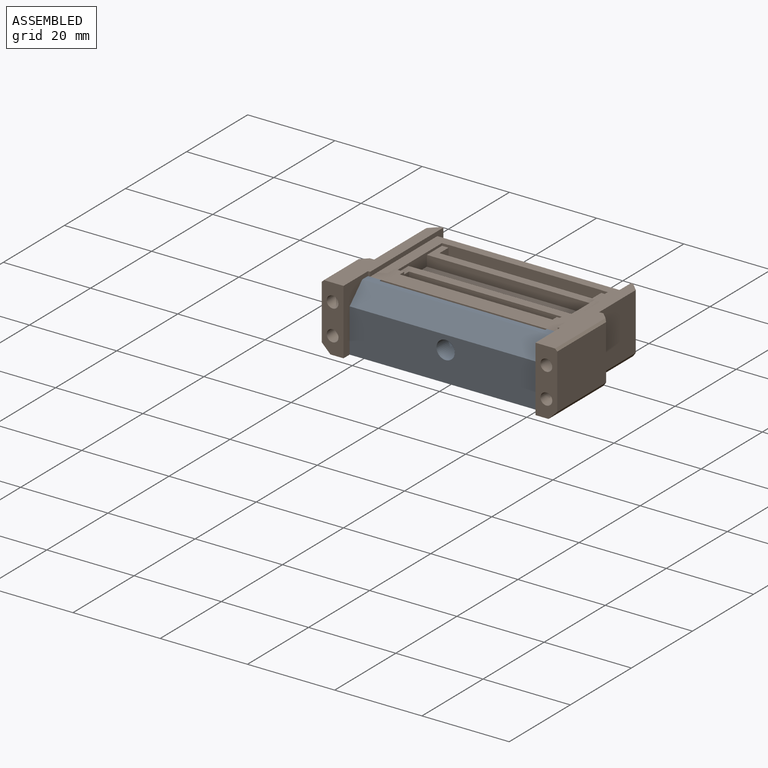
[diagram: assembled view]
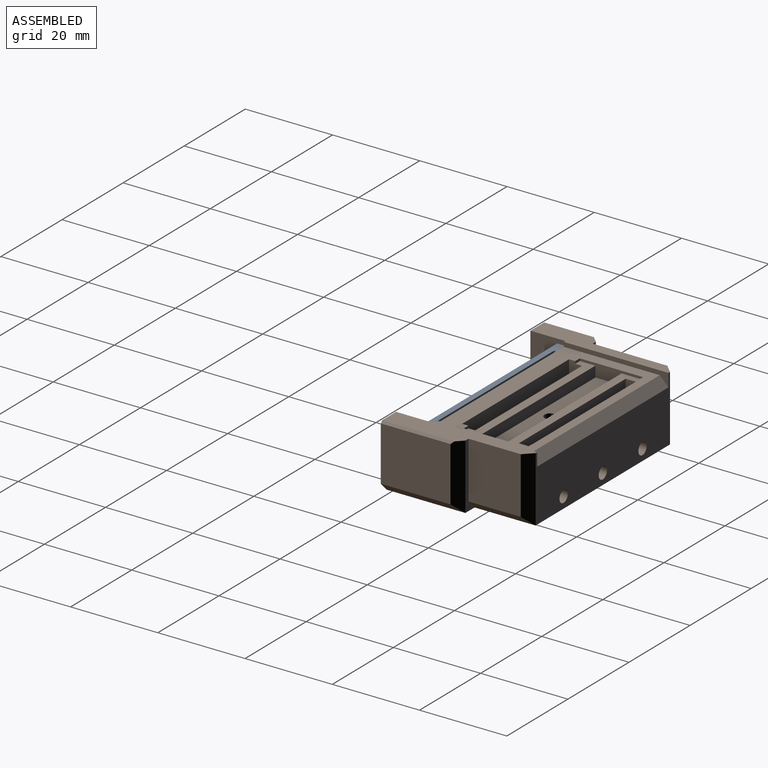
[diagram: assembled view, second angle]
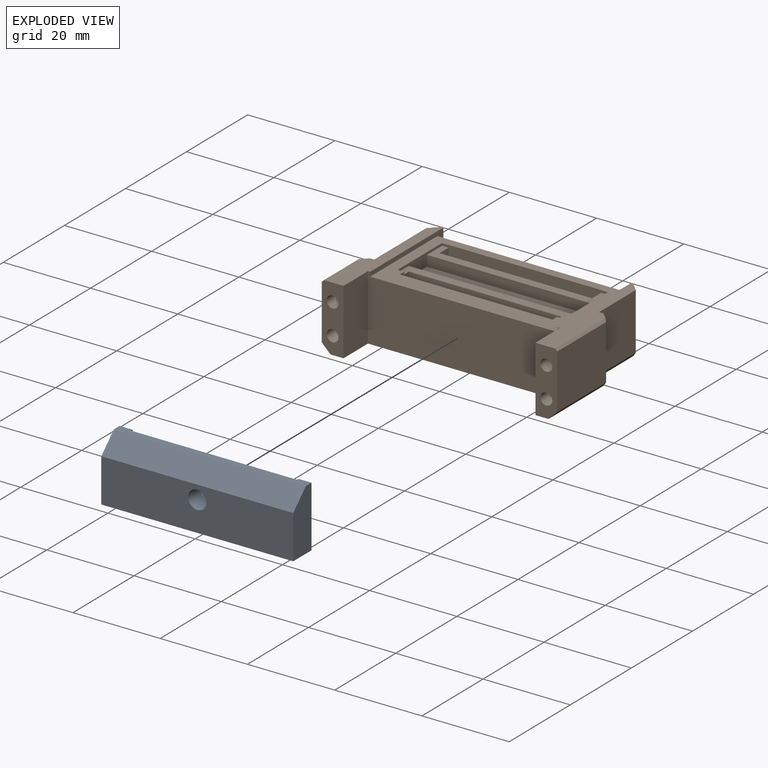
[diagram: exploded view]
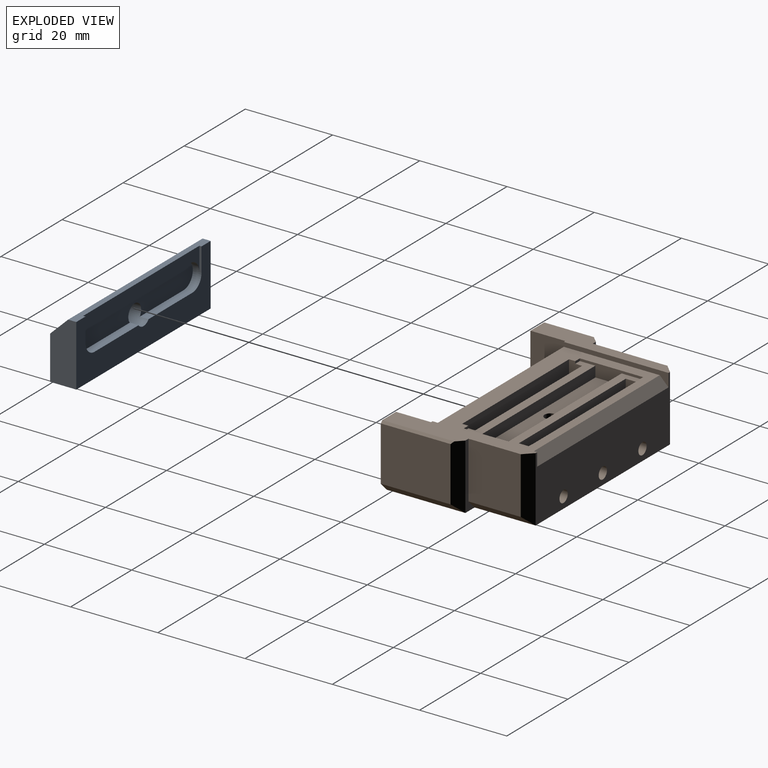
[diagram: exploded view, second angle]
ASSEMBLY  parts=2 mates=3
PART A: 17 faces, bbox 44x6x14 mm
  f0: plane 44x6mm, normal (0,0,1), area 264mm2, adj f1,f4,f5,f6
  f1: plane 44x14mm, normal (0,-1,0), area 296.9mm2, adj f0,f2,f5,f6,f7,f8,f9,f11
  f2: plane 44x1.86mm, normal (0,0,-1), area 62.7mm2, adj f1,f3,f5,f6,f8,f9,f10
  f3: plane 44x4.14mm, normal (0,0.69,-0.72), area 253.4mm2, adj f2,f4,f5,f6
  f4: plane 44x10mm, normal (0,1,0), area 426.1mm2, adj f0,f3,f5,f6,f7
  f5: plane 14x6mm, normal (1,0,0), area 75.7mm2, adj f0,f1,f2,f3,f4
  f6: plane 14x6mm, normal (-1,0,0), area 75.7mm2, adj f0,f1,f2,f3,f4
  f7: cylinder r=2.1mm len=6mm, axis (0,1,0), area 60.4mm2, adj f1,f4,f11,f15,f16
  f8: plane 5.45x0.5mm, normal (1,0,0), area 2.7mm2, adj f1,f2,f10,f12
  f9: plane 5.45x0.5mm, normal (-1,0,0), area 2.7mm2, adj f1,f2,f10,f14
  f10: plane 38x5.45mm, normal (0,-1,0), area 97mm2, adj f2,f8,f9,f12,f13,f14
  f11: plane 14.35x2mm, normal (0,0,-1), area 28.7mm2, adj f1,f7,f12,f16
  f12: cylinder r=3mm len=6mm, axis (0,-1,0), area 16.5mm2, adj f1,f8,f10,f11,f13,f16
  f13: plane 32x1.5mm, normal (0,0,1), area 48mm2, adj f10,f12,f14,f16
  f14: cylinder r=3mm len=6mm, axis (0,-1,0), area 16.5mm2, adj f1,f9,f10,f13,f15,f16
  f15: plane 14.35x2mm, normal (0,0,-1), area 28.7mm2, adj f1,f7,f14,f16
  f16: plane 38x6mm, normal (0,-1,0), area 208.3mm2, adj f7,f11,f12,f13,f14,f15
PART B: 65 faces, bbox 54x32x15 mm
  f0: plane 16x12.5mm, normal (1,0,0), area 200mm2, adj f2,f14,f55,f56
  f1: plane 32x5mm, normal (0,0,1), area 117.9mm2, adj f2,f9,f12,f13,f14,f17,f37,f38
  f2: plane 16.5x0.5mm, normal (0.71,0,0.71), area 11.5mm2, adj f0,f1,f14,f56
  f3: plane 43x22mm, normal (0,0,1), area 342.4mm2, adj f4,f5,f12,f17,f18,f19,f20,f21
  f4: plane 1.5x0.55mm, normal (0,1,0), area 0.8mm2, adj f3,f7,f21,f26
  f5: plane 1.5x0.55mm, normal (0,-1,0), area 0.8mm2, adj f3,f6,f21,f32
  f6: plane 38x4.95mm, normal (0,0,1), area 84.8mm2, adj f5,f19,f21,f22,f24,f31,f32,f34
  f7: plane 38x3.58mm, normal (0,0,1), area 80.7mm2, adj f4,f19,f20,f21,f23,f26,f27,f28
  f8: plane 32x5mm, normal (0,0,1), area 105.1mm2, adj f9,f10,f11,f12,f18,f36,f39,f40
  f9: plane 44x15mm, normal (0,1,0), area 513.8mm2, adj f1,f8,f16,f17,f18,f49,f51,f57
  f10: plane 15x5mm, normal (0,-1,0), area 61.4mm2, adj f8,f11,f15,f16,f36,f45,f47,f53
  f11: plane 15x8mm, normal (1,0,0), area 120mm2, adj f8,f10,f12,f16
  f12: plane 44x15mm, normal (0,-1,0), area 617mm2, adj f1,f3,f8,f11,f13,f16,f17,f18
  f13: plane 15x8mm, normal (-1,0,0), area 120mm2, adj f1,f12,f14,f16
  f14: plane 15x5mm, normal (0,-1,0), area 61.4mm2, adj f0,f1,f2,f13,f16,f41,f43,f55
  f15: plane 12.5x10.9mm, normal (-1,0,0), area 136.2mm2, adj f10,f36,f53,f54
  f16: plane 50x32mm, normal (0,0,-1), area 1148.7mm2, adj f9,f10,f11,f12,f13,f14,f37,f39
  f17: plane 24x3mm, normal (-1,0,0), area 26mm2, adj f1,f3,f9,f12,f57
  f18: plane 24x3mm, normal (1,0,0), area 26mm2, adj f3,f8,f9,f12,f57
  f19: plane 14.52x3mm, normal (1,0,0), area 22.7mm2, adj f3,f6,f7,f20,f22,f23,f24,f25
  f20: plane 1.5x0.55mm, normal (0,1,0), area 0.8mm2, adj f3,f7,f19,f28
  f21: plane 14.52x3mm, normal (-1,0,0), area 22.7mm2, adj f3,f4,f5,f6,f7,f23,f24,f25
  f22: plane 1.5x0.55mm, normal (0,-1,0), area 0.8mm2, adj f3,f6,f19,f34
  f23: plane 38x2.45mm, normal (0,1,0), area 93.1mm2, adj f7,f19,f21,f25
  f24: plane 38x2.45mm, normal (0,-1,0), area 93.1mm2, adj f6,f19,f21,f25
  f25: plane 38x6mm, normal (0,0,1), area 222.3mm2, adj f19,f21,f23,f24,f58
  f26: plane 9x3mm, normal (-1,0,0), area 26.1mm2, adj f3,f4,f7,f27,f29,f30
  f27: plane 35x8.45mm, normal (0,-1,0), area 295.8mm2, adj f7,f26,f28,f30
  f28: plane 9x3mm, normal (1,0,0), area 26.1mm2, adj f3,f7,f20,f27,f29,f30
  f29: plane 35x9mm, normal (0,1,0), area 315mm2, adj f3,f26,f28,f30
  f30: plane 35x3mm, normal (0,0,1), area 99.2mm2, adj f26,f27,f28,f29,f61
  f31: plane 35x8.45mm, normal (0,1,0), area 295.8mm2, adj f6,f32,f34,f35
  f32: plane 9x3mm, normal (-1,0,0), area 25.4mm2, adj f3,f5,f6,f31,f33,f35
  f33: plane 35x9mm, normal (0,-1,0), area 315mm2, adj f3,f32,f34,f35
  f34: plane 9x3mm, normal (1,0,0), area 25.4mm2, adj f3,f6,f22,f31,f33,f35
  f35: plane 35x3mm, normal (0,0,1), area 99.2mm2, adj f31,f32,f33,f34,f63
  f36: plane 11.4x0.5mm, normal (-0.71,0,0.71), area 7.9mm2, adj f8,f10,f15,f54
  f37: plane 15x3mm, normal (0,1,0), area 17mm2, adj f1,f16,f38,f50,f56
  f38: plane 13x12mm, normal (1,0,0), area 156mm2, adj f1,f37,f49,f50
  f39: plane 15x3mm, normal (0,1,0), area 17mm2, adj f8,f16,f40,f52,f54
  f40: plane 17.1x13mm, normal (-1,0,0), area 222.3mm2, adj f8,f39,f51,f52
  f41: cylinder r=1.35mm len=6mm, axis (0,-1,0), area 50.9mm2, adj f14,f42
  f42: plane 2.7x2.7mm, normal (0,-1,0), area 5.7mm2, adj f41
  f43: cylinder r=1.35mm len=6mm, axis (0,-1,0), area 50.9mm2, adj f14,f44
  f44: plane 2.7x2.7mm, normal (0,-1,0), area 5.7mm2, adj f43
  f45: cylinder r=1.35mm len=6mm, axis (0,-1,0), area 50.9mm2, adj f10,f46
  f46: plane 2.7x2.7mm, normal (0,-1,0), area 5.7mm2, adj f45
  f47: cylinder r=1.35mm len=6mm, axis (0,-1,0), area 50.9mm2, adj f10,f48
  f48: plane 2.7x2.7mm, normal (0,-1,0), area 5.7mm2, adj f47
  f49: plane 15x2mm, normal (0.71,0.71,0), area 39.6mm2, adj f1,f9,f38,f50
  f50: plane 14x2mm, normal (0.71,0,-0.71), area 36.8mm2, adj f16,f37,f38,f49
  f51: plane 15x2mm, normal (-0.71,0.71,0), area 39.6mm2, adj f8,f9,f40,f52
  f52: plane 19.1x2mm, normal (-0.71,0,-0.71), area 51.2mm2, adj f16,f39,f40,f51
  f53: plane 12.9x2mm, normal (-0.71,0,-0.71), area 33.6mm2, adj f10,f15,f16,f54
  f54: plane 15x2mm, normal (-0.71,0.71,0), area 39.4mm2, adj f8,f15,f36,f39,f53
  f55: plane 18x2mm, normal (0.71,0,-0.71), area 48.1mm2, adj f0,f14,f16,f56
  f56: plane 15x2mm, normal (0.71,0.71,0), area 39.4mm2, adj f0,f1,f2,f37,f55
  f57: plane 43x2mm, normal (0,0.71,0.71), area 121.6mm2, adj f3,f9,f17,f18
  f58: cylinder r=1.35mm len=5.5mm, axis (0,0,-1), area 46.7mm2, adj f25,f59
  f59: torus R=3mm, axis (1,0,0), area 40mm2, adj f58,f60
  f60: cylinder r=1.35mm len=9mm, axis (0,1,0), area 76.3mm2, adj f9,f59
  f61: torus R=2.93mm, axis (1,0,0), area 34.8mm2, adj f30,f62
  f62: cylinder r=1.35mm len=15.58mm, axis (0,1,0), area 132.1mm2, adj f9,f61
  f63: torus R=2.97mm, axis (1,0,0), area 35.2mm2, adj f35,f64
  f64: cylinder r=1.35mm len=2.7mm, axis (0,1,0), area 21.2mm2, adj f9,f63
PLACE A rot(axis=(1,0,0),180deg) t=(-22,-12,0)mm
PLACE B at identity fixed
MATE planar A.f1 <-> B.f12  axis (0,1,0) through (0,-12,4)mm
MATE planar B.f13 <-> A.f5  axis (-1,0,0) through (22,-16,7.5)mm
MATE planar A.f0 <-> B.f16  axis (0,0,-1) through (0,-15,0)mm
